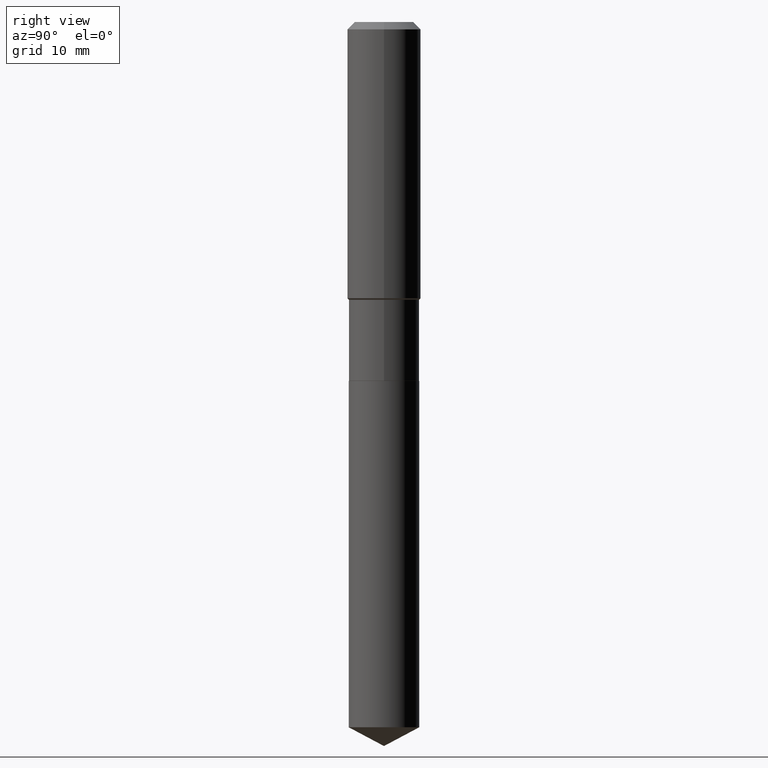
[diagram: clean part render]
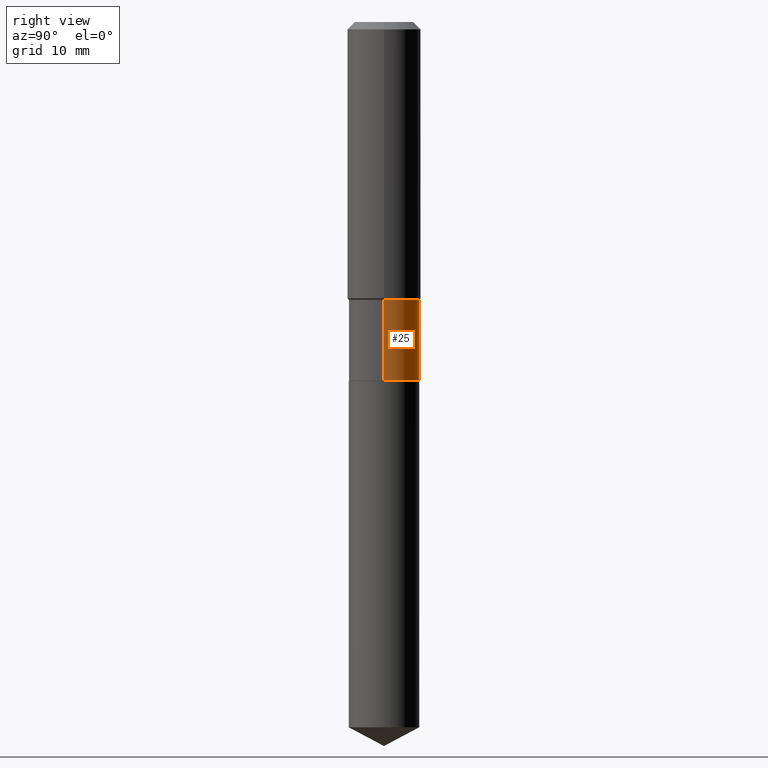
[diagram: same view with one face highlighted and labeled with its STEP entity id]
A machine part, right view. The second image highlights one B-rep face of the part: STEP entity #25.
In plain terms, the highlighted cylindrical surface (edge-blend (fillet) strip) has radius 5.7506 mm, axis along (-0, 0, 1).
Its self-contained STEP definition (entity closure, byte-faithful):
#3 = FACE_OUTER_BOUND ( 'NONE', #291, .T. ) ;
#5 = VERTEX_POINT ( 'NONE', #215 ) ;
#6 = CYLINDRICAL_SURFACE ( 'NONE', #219, 0.2263999999999999346 ) ;
#19 = CARTESIAN_POINT ( 'NONE',  ( 0.2263999999999999346, -1.580942750228170233E-15, 1.103966422040199590E-29 ) ) ;
#24 = LINE ( 'NONE', #19, #268 ) ;
#25 = ADVANCED_FACE ( 'NONE', ( #3 ), #6, .T. ) ;
#32 = EDGE_CURVE ( 'NONE', #185, #5, #74, .T. ) ;
#55 = DIRECTION ( 'NONE',  ( -2.445468806185136877E-29, 3.491481338843145188E-15, 1.000000000000000000 ) ) ;
#58 = VERTEX_POINT ( 'NONE', #132 ) ;
#71 = ORIENTED_EDGE ( 'NONE', *, *, #457, .F. ) ;
#74 = CIRCLE ( 'NONE', #145, 0.2263999999999999069 ) ;
#75 = CARTESIAN_POINT ( 'NONE',  ( -0.2263999999999999346, 1.608668753760866356E-15, -1.113646904433710280E-29 ) ) ;
#80 = DIRECTION ( 'NONE',  ( 1.000000000000000000, -6.982962677686265922E-15, 0.000000000000000000 ) ) ;
#91 = ORIENTED_EDGE ( 'NONE', *, *, #421, .T. ) ;
#92 = CIRCLE ( 'NONE', #356, 0.2263999999999999624 ) ;
#103 = DIRECTION ( 'NONE',  ( 1.000000000000000000, -6.982962677686269077E-15, 0.000000000000000000 ) ) ;
#111 = DIRECTION ( 'NONE',  ( -2.445468806185136597E-29, 3.491481338843145583E-15, 1.000000000000000000 ) ) ;
#132 = CARTESIAN_POINT ( 'NONE',  ( -0.2263999999999999624, -5.523031028960140857E-15, -2.302699999999999303 ) ) ;
#145 = AXIS2_PLACEMENT_3D ( 'NONE', #334, #460, #80 ) ;
#153 = ORIENTED_EDGE ( 'NONE', *, *, #207, .T. ) ;
#185 = VERTEX_POINT ( 'NONE', #341 ) ;
#190 = CARTESIAN_POINT ( 'NONE',  ( 0.000000000000000000, 0.000000000000000000, 0.000000000000000000 ) ) ;
#207 = EDGE_CURVE ( 'NONE', #394, #58, #92, .T. ) ;
#215 = CARTESIAN_POINT ( 'NONE',  ( -0.2263999999999999069, -5.523031028960140857E-15, -1.782499999999999307 ) ) ;
#216 = CARTESIAN_POINT ( 'NONE',  ( 0.2263999999999999624, -9.620776829182280876E-15, -2.302699999999999303 ) ) ;
#219 = AXIS2_PLACEMENT_3D ( 'NONE', #190, #111, #253 ) ;
#234 = CARTESIAN_POINT ( 'NONE',  ( 5.631181020002513283E-29, -8.039834078954108869E-15, -2.302699999999999303 ) ) ;
#253 = DIRECTION ( 'NONE',  ( 1.000000000000000000, -6.982962677686265922E-15, 4.876176775795935793E-29 ) ) ;
#268 = VECTOR ( 'NONE', #55, 39.37007874015748143 ) ;
#291 = EDGE_LOOP ( 'NONE', ( #153, #91, #441, #71 ) ) ;
#334 = CARTESIAN_POINT ( 'NONE',  ( 4.359048147025004325E-29, -6.223565486487904770E-15, -1.782499999999999307 ) ) ;
#341 = CARTESIAN_POINT ( 'NONE',  ( 0.2263999999999999069, -7.804508236716074411E-15, -1.782499999999999307 ) ) ;
#342 = DIRECTION ( 'NONE',  ( -2.445468806185136877E-29, 3.491481338843145188E-15, 1.000000000000000000 ) ) ;
#356 = AXIS2_PLACEMENT_3D ( 'NONE', #234, #384, #103 ) ;
#384 = DIRECTION ( 'NONE',  ( -2.445468806185136597E-29, 3.491481338843145583E-15, 1.000000000000000000 ) ) ;
#394 = VERTEX_POINT ( 'NONE', #216 ) ;
#421 = EDGE_CURVE ( 'NONE', #58, #5, #452, .T. ) ;
#441 = ORIENTED_EDGE ( 'NONE', *, *, #32, .F. ) ;
#452 = LINE ( 'NONE', #75, #484 ) ;
#457 = EDGE_CURVE ( 'NONE', #394, #185, #24, .T. ) ;
#460 = DIRECTION ( 'NONE',  ( -2.445468806185136597E-29, 3.491481338843145583E-15, 1.000000000000000000 ) ) ;
#484 = VECTOR ( 'NONE', #342, 39.37007874015748143 ) ;